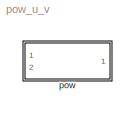
MODEL pow_u_v
KIND model
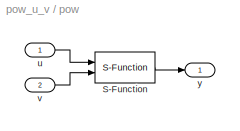
BLOCK [SubSystem] pow
  Description = u^v
  MinAlgLoopOccurrences = off
  Ports = [2, 1]
  RTWSystemCode = Auto
  TreatAsAtomicUnit = off
BLOCK [S-Function] pow/S-Function
  FunctionName = s_pow
  Ports = [2, 1]
BLOCK [Inport] pow/u
  IconDisplay = Port number
  LatchInput = off
  Port = 1
BLOCK [Inport] pow/v
  IconDisplay = Port number
  LatchInput = off
  Port = 2
  PortDimensions = 1
BLOCK [Outport] pow/y
  BusOutputAsStruct = off
  IconDisplay = Port number
LINE pow/S-Function:1 -> pow/y:1
LINE pow/u:1 -> pow/S-Function:1
LINE pow/v:1 -> pow/S-Function:2
